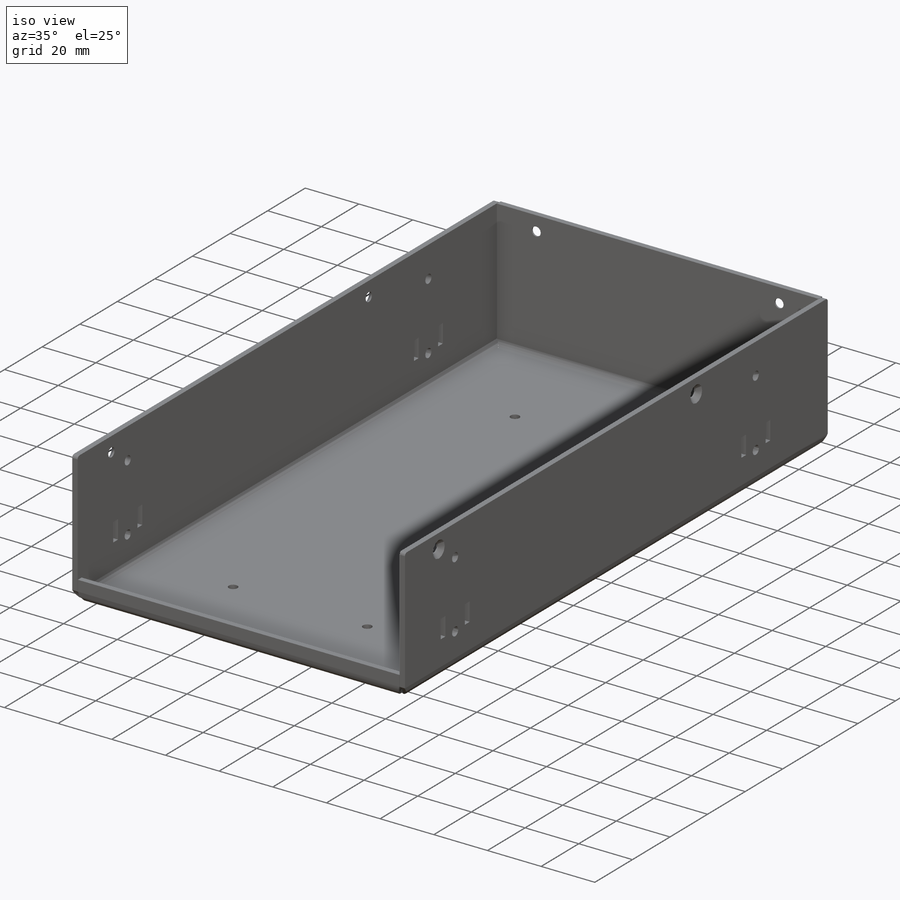
[diagram: iso view]
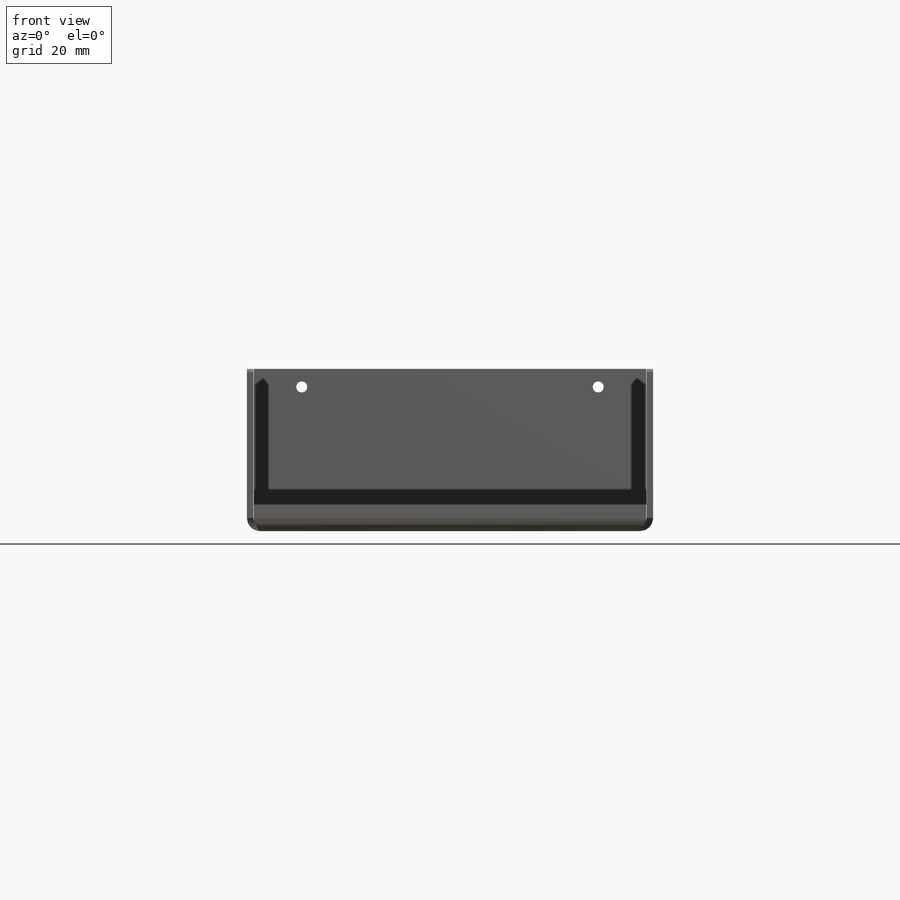
[diagram: front view]
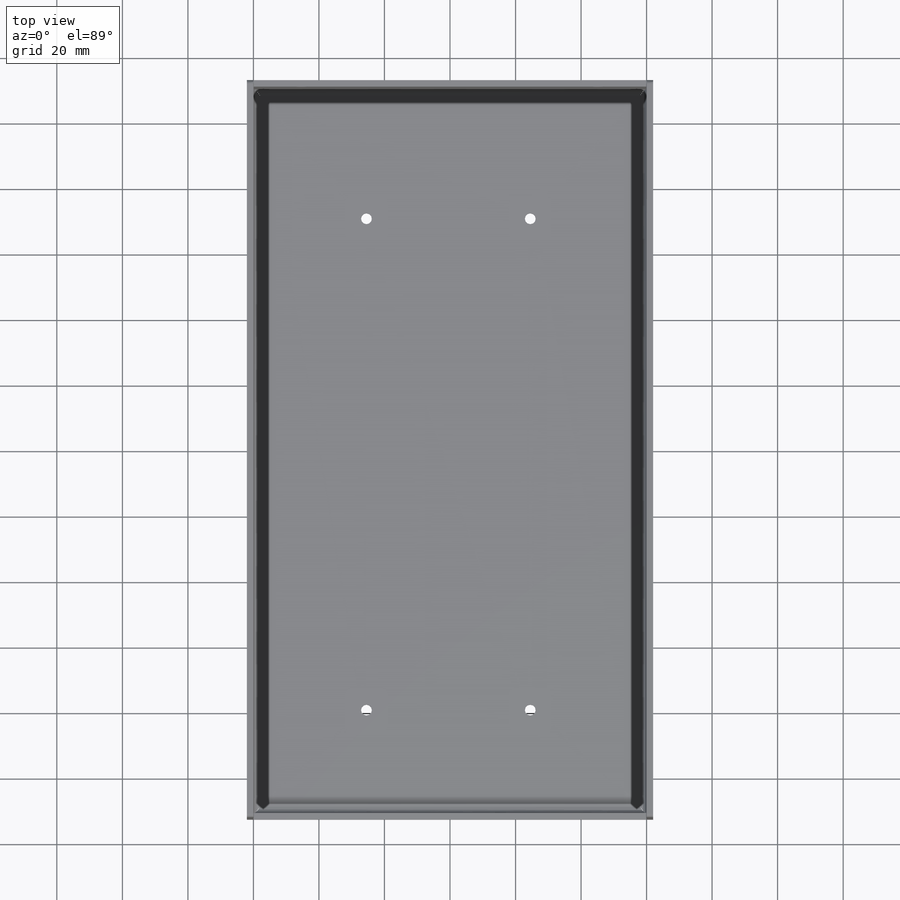
[diagram: top view]
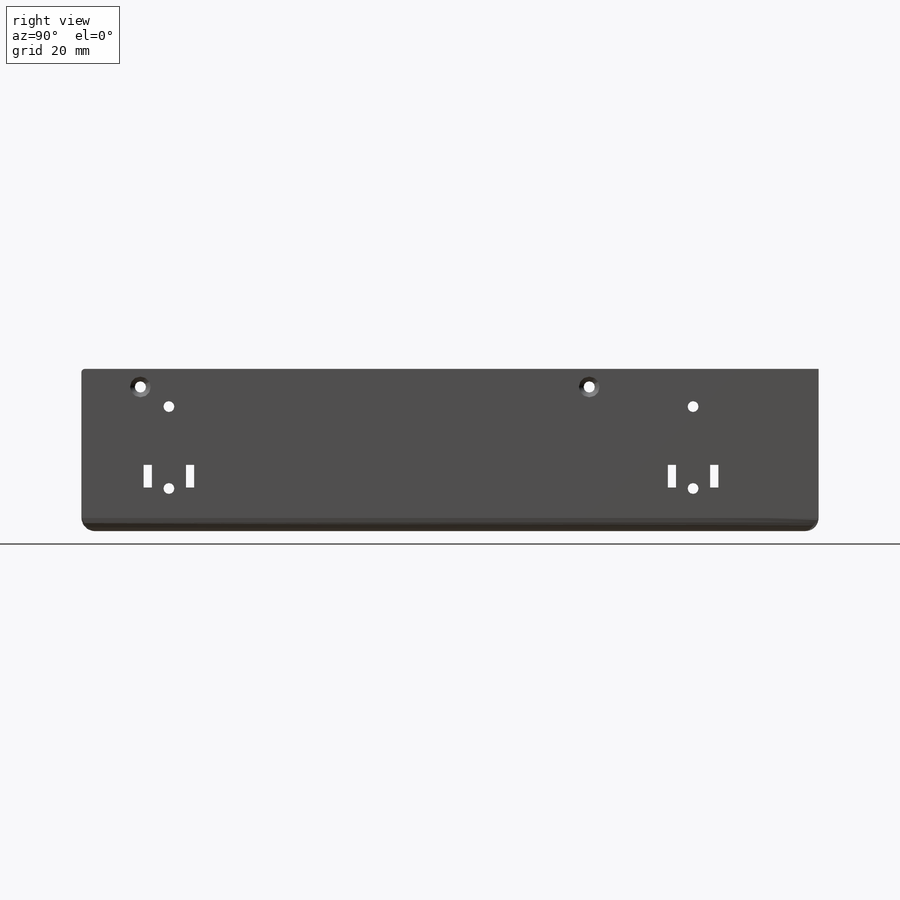
[diagram: right view]
SOLIDWORKS PART (.sldprt)
format: sldprt  version: not decoded by parser v0  size: 1,002,496 bytes
history: native  units: mm
features: sketch x48, sheet_metal_op x14, thread x12, fillet x10, hole x6, cut_extrude x2, material x1, plane x1 + 36 further entries (+13 scaffold rows collapsed; 10 parser-record rows omitted)
feature tree (153):
  scaffold x13  (default folders/planes/origin — collapsed)
  material  "3003 Alloy"
  sketch  "Sketch1"  dims[c1.D1=124.0mm c1.D2=225.0mm c2.D1=0.7366mm c2.D2=0.5 c2.D3=0.0mm c2.D6=500.0mm]
  sheet_metal_op  "Base-Flange1"
  sketch  "Sketch14"
  sketch  "Sketch15"
  sketch  "Sketch16"
  sketch  "Sketch17"  dims[D1=2.0mm D4=90.0deg D5=1.0 D8=1.0mm D9=1.0mm]
  sheet_metal_op  "EdgeBend2"
  sheet_metal_op  "EdgeBend3"
  sheet_metal_op  "EdgeBend4"
  sketch  "Sketch18"  dims[D1=8.0mm]
  cut_extrude  "Cut-Extrude1"  [1 undecoded]
  plane  "Plane1"
  sketch  "Sketch28"  dims[D1=137.0mm D2=44.0mm D3=18.0mm]
  hole  "CSK for M3 Flat Head Machine Screw1"  Diameter=3.4mm Depth=2mm
  sketch  "3DSketch1"
  sketch  "Sketch29"  dims[hole-wizard template sketch: 59 standard entries collapsed; hole parameters above]
  sketch  "Sketch30"
  hole  "CSK for M3 Flat Head Machine Screw2"  Diameter=3.4mm Depth=2mm
  sketch  "3DSketch2"
  sketch  "Sketch31"  dims[hole-wizard template sketch: 59 standard entries collapsed; hole parameters above]
  sketch  "Sketch32"  dims[D1=44.0mm D2=90.5mm D3=16.75mm]
  hole  "CSK for M3 Flat Head Machine Screw3"  Diameter=3.4mm Depth=2mm
  sketch  "3DSketch3"
  sketch  "Sketch33"  dims[hole-wizard template sketch: 59 standard entries collapsed; hole parameters above]
  sketch  "Sketch34"  dims[D1=13.0mm D2=160.0mm D3=26.7mm D4=25.0mm]
  hole  "M4x0.7 Tapped Hole1"  Diameter=3.3mm Depth=2mm
  sketch  "3DSketch4"
  sketch  "Sketch35"  dims[hole-wizard template sketch: 60 standard entries collapsed; hole parameters kept: c18.Thru Tap Drill Depth=2.0mm]
  thread  "Hole Thread1"  Diameter=4mm  [1 undecoded]
  thread  "Hole Thread2"  Diameter=4mm  [1 undecoded]
  thread  "Hole Thread11"  Diameter=4mm  [1 undecoded]
  thread  "Hole Thread12"  Diameter=4mm  [1 undecoded]
  sketch  "Sketch36"  dims[D1=25.0mm]
  hole  "M4x0.7 Tapped Hole2"  Diameter=3.3mm Depth=124mm
  sketch  "3DSketch5"
  sketch  "Sketch37"  dims[hole-wizard template sketch: 60 standard entries collapsed; hole parameters kept: c18.Thru Tap Drill Depth=124.0mm]
  thread  "Hole Thread3"  Diameter=4mm  [1 undecoded]
  thread  "Hole Thread4"  Diameter=4mm  [1 undecoded]
  thread  "Hole Thread5"  Diameter=4mm  [1 undecoded]
  thread  "Hole Thread6"  Diameter=4mm  [1 undecoded]
  sketch  "Sketch38"  dims[c1.D1=50.0mm c1.D2=150.0mm c1.D3=32.5mm c1.D4=33.5mm c2.D3=37.5mm c2.D1=50.0mm c3.D3=37.5mm c3.D4=33.5mm]
  hole  "M4x0.7 Tapped Hole3"  Diameter=3.3mm Depth=2mm
  sketch  "3DSketch6"
  sketch  "Sketch39"  dims[hole-wizard template sketch: 60 standard entries collapsed; hole parameters kept: c18.Thru Tap Drill Depth=2.0mm]
  thread  "Hole Thread7"  Diameter=4mm  [1 undecoded]
  thread  "Hole Thread8"  Diameter=4mm  [1 undecoded]
  thread  "Hole Thread9"  Diameter=4mm  [1 undecoded]
  thread  "Hole Thread10"  Diameter=4mm  [1 undecoded]
  sketch  "Sketch40"  dims[D1=6.9mm D2=7.2mm D3=10.4mm D4=2.5mm]
  cut_extrude  "Cut-Extrude6"  [1 undecoded]
  sketch  "Sketch41"  dims[D1=66.0mm D2=25.5mm]
  fillet  "Fillet1"  Radius=1mm
  sketch  "Bend-Lines1"
  sketch  "Bounding-Box1"
  sheet_metal_op  "Sheet-Metal1"
  "Flat-Pattern1"
  sketch  "Bend-Lines2"
  sketch  "Bounding-Box2"
  parser-record x10  (decoder bookkeeping rows leaked as tree rows — omitted from the tree; the rows remain in map.json)
  fillet  "Sheet-Metal2"  Radius=0.7366mm
  sheet_metal_op  "Flat-Pattern1"
  sketch  "Bend-Lines2"
  sketch  "Bounding-Box2"
  "Flatten-<EdgeBend2>1"
  "Flatten-<EdgeBend3>1"
  "Flatten-<EdgeBend4>1"
  fillet  "Sheet-Metal3"  Radius=0.7366mm
  sheet_metal_op  "Flat-Pattern1"
  sketch  "Bend-Lines2"
  sketch  "Bounding-Box2"
  "Flatten-<EdgeBend1>1"
  "Flatten-<EdgeBend2>1"
  "Flatten-<EdgeBend3>1"
  "Flatten-<EdgeBend4>1"
  fillet  "Sheet-Metal9"  Radius=0.7366mm
  sheet_metal_op  "Flat-Pattern1"
  sketch  "Bend-Lines2"
  sketch  "Bounding-Box2"
  "Flatten-<EdgeBend1>1"
  "Flatten-<EdgeBend2>1"
  "Flatten-<EdgeBend3>1"
  "Flatten-<EdgeBend4>1"
  fillet  "Sheet-Metal10"  Radius=0.7366mm
  sheet_metal_op  "Flat-Pattern1"
  sketch  "Bend-Lines2"
  sketch  "Bounding-Box2"
  "Flatten-<EdgeBend1>1"
  "Flatten-<EdgeBend2>1"
  "Flatten-<EdgeBend3>1"
  "Flatten-<EdgeBend4>1"
  fillet  "Sheet-Metal11"  Radius=0.7366mm
  sheet_metal_op  "Flat-Pattern1"
  sketch  "Bend-Lines2"
  sketch  "Bounding-Box2"
  "Flatten-<EdgeBend1>1"
  "Flatten-<EdgeBend2>1"
  "Flatten-<EdgeBend3>1"
  "Flatten-<EdgeBend4>1"
  fillet  "Sheet-Metal12"  Radius=0.7366mm
  sheet_metal_op  "Flat-Pattern1"
  sketch  "Bend-Lines2"
  sketch  "Bounding-Box2"
  "Flatten-<EdgeBend1>1"
  "Flatten-<EdgeBend2>1"
  "Flatten-<EdgeBend3>1"
  "Flatten-<EdgeBend4>1"
  fillet  "Sheet-Metal13"  Radius=0.7366mm
  sheet_metal_op  "Flat-Pattern1"
  sketch  "Bend-Lines2"
  sketch  "Bounding-Box2"
  "Flatten-<EdgeBend1>1"
  "Flatten-<EdgeBend2>1"
  "Flatten-<EdgeBend3>1"
  "Flatten-<EdgeBend4>1"
  fillet  "Sheet-Metal14"  Radius=0.7366mm
  sheet_metal_op  "Flat-Pattern1"
  sketch  "Bend-Lines2"
  sketch  "Bounding-Box2"
  "Flatten-<EdgeBend1>1"
  "Flatten-<EdgeBend2>1"
  "Flatten-<EdgeBend3>1"
  "Flatten-<EdgeBend4>1"
  fillet  "Sheet-Metal15"  Radius=0.7366mm
  sheet_metal_op  "Flat-Pattern1"
  sketch  "Bend-Lines2"
  sketch  "Bounding-Box2"
  "Flatten-<EdgeBend1>1"
  "Flatten-<EdgeBend2>1"
  "Flatten-<EdgeBend3>1"
  "Flatten-<EdgeBend4>1"
decode coverage: 44 of 92 modeling features carry decoded parameters; 36 rows unclassified (native names shown)
note: ~ marks probable driven/reference dimensions
note: 14 parameter values undecoded
summary: Diameter pulled from absorbed wizard sketch
note: suppression state not decoded; provenance and decode notes live in map.json
